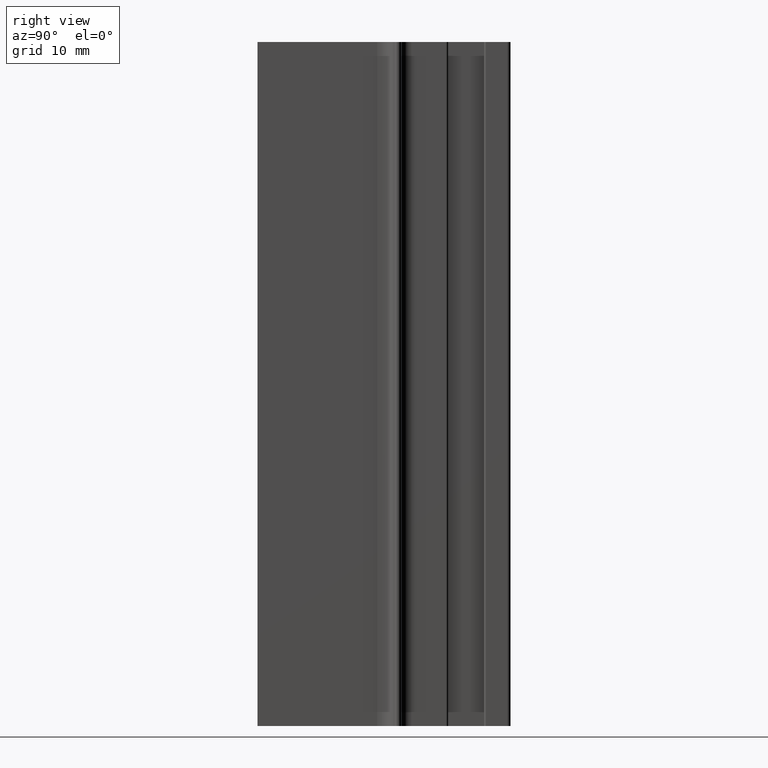
[diagram: clean part render]
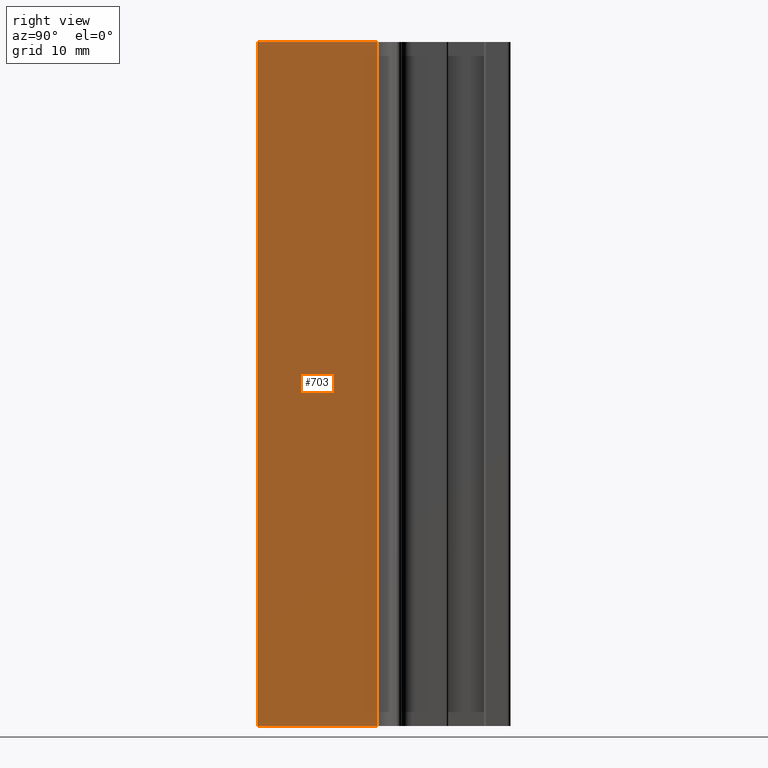
[diagram: same view with one face highlighted and labeled with its STEP entity id]
A machine part, right view. The second image highlights one B-rep face of the part: STEP entity #703.
In plain terms, the highlighted planar face has unit normal (1, 0, 0).
Its self-contained STEP definition (entity closure, byte-faithful):
#7=CARTESIAN_POINT('',(0.0,17.499999999998863,0.0));
#8=VERTEX_POINT('',#7);
#26=CARTESIAN_POINT('',(0.0,17.499999999998863,100.0));
#27=VERTEX_POINT('',#26);
#35=CARTESIAN_POINT('',(0.0,17.499999999998863,0.0));
#36=DIRECTION('',(0.0,0.0,1.0));
#37=VECTOR('',#36,100.0);
#38=LINE('',#35,#37);
#39=EDGE_CURVE('',#8,#27,#38,.T.);
#654=CARTESIAN_POINT('',(0.0,0.0,0.0));
#655=VERTEX_POINT('',#654);
#663=CARTESIAN_POINT('',(0.0,0.0,100.0));
#664=VERTEX_POINT('',#663);
#665=CARTESIAN_POINT('',(0.0,0.0,0.0));
#666=DIRECTION('',(0.0,0.0,1.0));
#667=VECTOR('',#666,100.0);
#668=LINE('',#665,#667);
#669=EDGE_CURVE('',#655,#664,#668,.T.);
#682=CARTESIAN_POINT('',(0.0,0.0,0.0));
#683=DIRECTION('',(1.0,0.0,0.0));
#684=DIRECTION('',(0.0,1.0,0.0));
#685=AXIS2_PLACEMENT_3D('',#682,#683,#684);
#686=PLANE('',#685);
#687=CARTESIAN_POINT('',(0.0,0.0,0.0));
#688=DIRECTION('',(0.0,1.0,0.0));
#689=VECTOR('',#688,17.499999999998863);
#690=LINE('',#687,#689);
#691=EDGE_CURVE('',#655,#8,#690,.T.);
#692=ORIENTED_EDGE('',*,*,#691,.T.);
#693=ORIENTED_EDGE('',*,*,#39,.T.);
#694=CARTESIAN_POINT('',(0.0,0.0,100.0));
#695=DIRECTION('',(0.0,1.0,0.0));
#696=VECTOR('',#695,17.499999999998863);
#697=LINE('',#694,#696);
#698=EDGE_CURVE('',#664,#27,#697,.T.);
#699=ORIENTED_EDGE('',*,*,#698,.F.);
#700=ORIENTED_EDGE('',*,*,#669,.F.);
#701=EDGE_LOOP('',(#692,#693,#699,#700));
#702=FACE_OUTER_BOUND('',#701,.T.);
#703=ADVANCED_FACE('',(#702),#686,.T.);